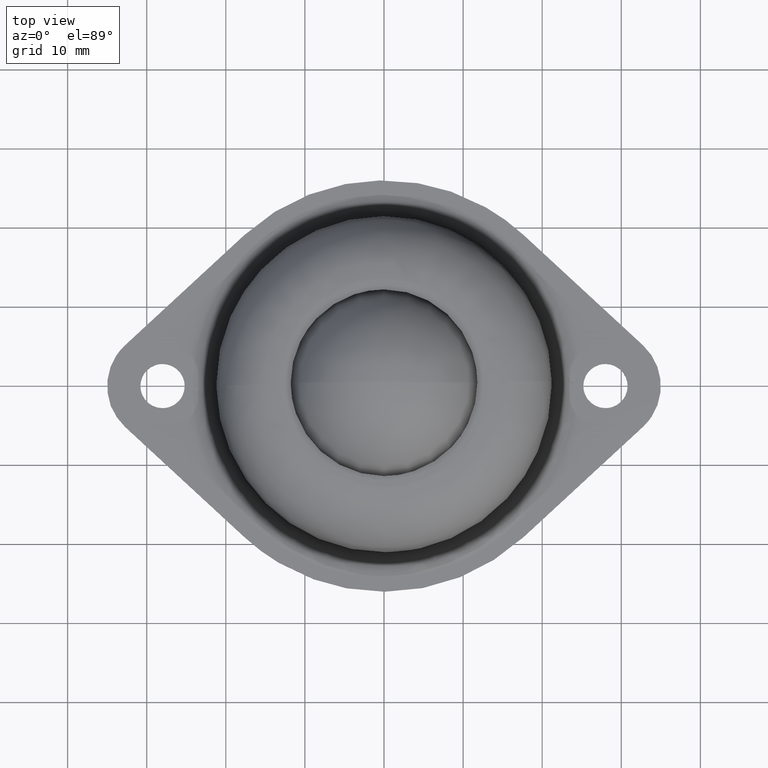
[diagram: clean part render]
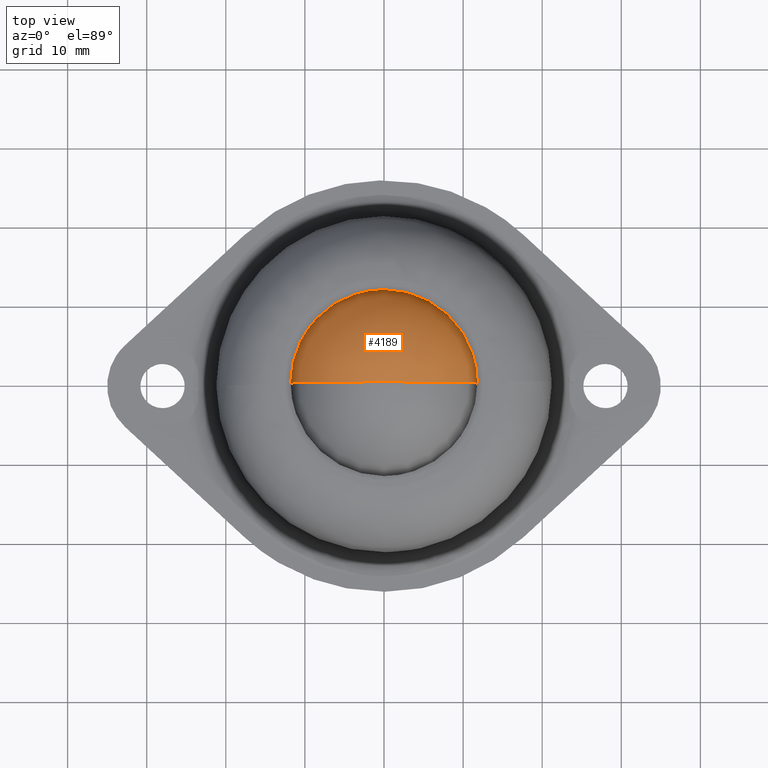
[diagram: same view with one face highlighted and labeled with its STEP entity id]
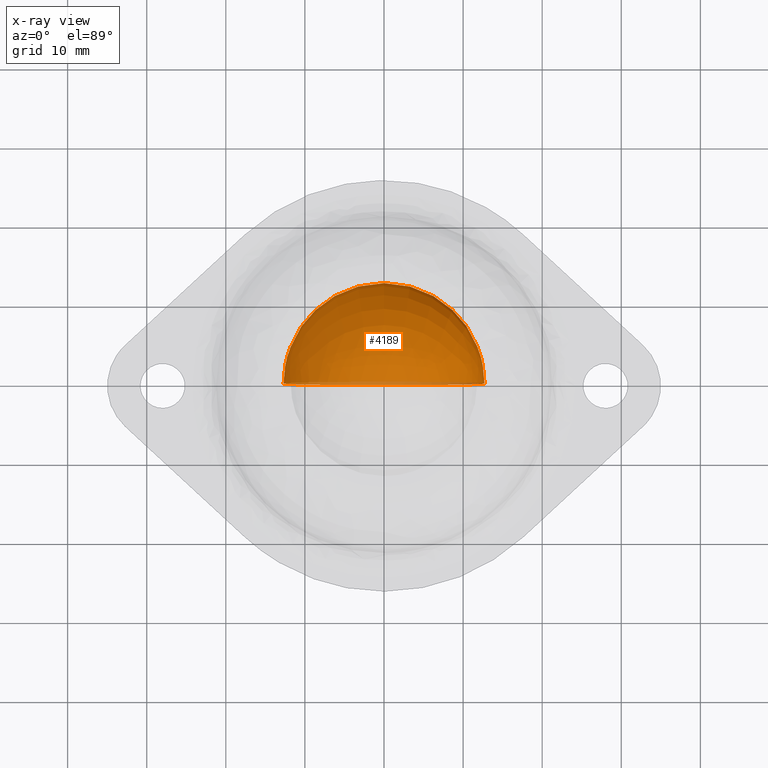
[diagram: x-ray of the same camera — body ghosted, the highlighted face saturated]
A machine part, top view. The second image highlights one B-rep face of the part: STEP entity #4189.
The next image is the same camera in x-ray: the body ghosted, the highlighted face saturated — about 3% of this face is hidden behind the body in this view.
In plain terms, the highlighted face is a freeform B-spline surface patch.
Its self-contained STEP definition (entity closure, byte-faithful):
#4062=CARTESIAN_POINT('',(-12.699999999999971,0.0,18.299999200742199));
#4063=VERTEX_POINT('',#4062);
#4064=CARTESIAN_POINT('',(0.0,0.0,5.600000000000001));
#4065=VERTEX_POINT('',#4064);
#4066=CARTESIAN_POINT('',(-12.699999999999971,0.0,18.299999200742199));
#4067=CARTESIAN_POINT('',(-12.700014432995410,0.0,17.754523017074259));
#4068=CARTESIAN_POINT('',(-12.624587836039179,0.0,16.585635148395561));
#4069=CARTESIAN_POINT('',(-12.242284863990379,0.0,14.723111663321641));
#4070=CARTESIAN_POINT('',(-11.549739743951950,0.0,12.894493333634280));
#4071=CARTESIAN_POINT('',(-10.710906216400531,0.0,11.424357013771120));
#4072=CARTESIAN_POINT('',(-9.789338617311007,0.0,10.165703006332860));
#4073=CARTESIAN_POINT('',(-8.800149980803203,0.0,9.094284493856621));
#4074=CARTESIAN_POINT('',(-7.502708177321456,0.0,8.009365768377553));
#4075=CARTESIAN_POINT('',(-5.943766952973771,0.0,7.015390183829774));
#4076=CARTESIAN_POINT('',(-4.387834633680080,0.0,6.342772329692170));
#4077=CARTESIAN_POINT('',(-2.363662346610817,0.0,5.762497502111541));
#4078=CARTESIAN_POINT('',(-1.013070300804061,0.0,5.599743555469085));
#4079=CARTESIAN_POINT('',(0.0,0.0,5.600000000000001));
#4080=B_SPLINE_CURVE_WITH_KNOTS('',3,(#4066,#4067,#4068,#4069,#4070,#4071,#4072,#4073,#4074,#4075,#4076,#4077,#4078,#4079),.UNSPECIFIED.,.F.,.U.,(4,1,1,1,1,1,1,1,1,1,1,4),(0.000000049066387,1.636431874159015,3.506676214303138,5.688623685117015,7.480944451646723,8.571902500633966,10.364199507868671,11.844783708121820,13.637109236099191,15.896975329774040,16.910028338913961,19.949144194189561),.UNSPECIFIED.);
#4081=EDGE_CURVE('',#4063,#4065,#4080,.T.);
#4083=CARTESIAN_POINT('',(12.699999999999971,0.0,18.299999200742199));
#4084=VERTEX_POINT('',#4083);
#4085=CARTESIAN_POINT('',(12.699999999999971,0.0,18.299999200742199));
#4086=CARTESIAN_POINT('',(12.700014432995410,0.0,17.754523017074259));
#4087=CARTESIAN_POINT('',(12.624587836039179,0.0,16.585635148395561));
#4088=CARTESIAN_POINT('',(12.242284863990379,0.0,14.723111663321641));
#4089=CARTESIAN_POINT('',(11.549739743951950,0.0,12.894493333634280));
#4090=CARTESIAN_POINT('',(10.710906216400531,0.0,11.424357013771120));
#4091=CARTESIAN_POINT('',(9.789338617311007,0.0,10.165703006332860));
#4092=CARTESIAN_POINT('',(8.800149980803203,0.0,9.094284493856621));
#4093=CARTESIAN_POINT('',(7.502708177321456,0.0,8.009365768377553));
#4094=CARTESIAN_POINT('',(5.943766952973771,0.0,7.015390183829774));
#4095=CARTESIAN_POINT('',(4.387834633680080,0.0,6.342772329692170));
#4096=CARTESIAN_POINT('',(2.363662346610817,0.0,5.762497502111541));
#4097=CARTESIAN_POINT('',(1.013070300804061,0.0,5.599743555469085));
#4098=CARTESIAN_POINT('',(0.0,0.0,5.600000000000001));
#4099=B_SPLINE_CURVE_WITH_KNOTS('',3,(#4085,#4086,#4087,#4088,#4089,#4090,#4091,#4092,#4093,#4094,#4095,#4096,#4097,#4098),.UNSPECIFIED.,.F.,.U.,(4,1,1,1,1,1,1,1,1,1,1,4),(0.000000049066387,1.636431874159015,3.506676214303138,5.688623685117015,7.480944451646723,8.571902500633966,10.364199507868671,11.844783708121820,13.637109236099191,15.896975329774040,16.910028338913961,19.949144194189561),.UNSPECIFIED.);
#4100=EDGE_CURVE('',#4084,#4065,#4099,.T.);
#4102=CARTESIAN_POINT('',(0.0,0.0,31.0));
#4103=VERTEX_POINT('',#4102);
#4104=CARTESIAN_POINT('',(0.0,0.0,31.0));
#4105=CARTESIAN_POINT('',(0.571458362768212,0.0,31.000019755641699));
#4106=CARTESIAN_POINT('',(1.766323092012794,0.0,30.919224843803889));
#4107=CARTESIAN_POINT('',(3.626463104796663,0.0,30.525491173249488));
#4108=CARTESIAN_POINT('',(5.403770413128687,0.0,29.846131052167419));
#4109=CARTESIAN_POINT('',(6.966768205631660,0.0,28.960661396786989));
#4110=CARTESIAN_POINT('',(8.506584615642712,0.0,27.804059798343321));
#4111=CARTESIAN_POINT('',(9.846912824638952,0.0,26.413409537816481));
#4112=CARTESIAN_POINT('',(11.098892874681470,0.0,24.588626045897350));
#4113=CARTESIAN_POINT('',(11.919047438698311,0.0,22.840596014580569));
#4114=CARTESIAN_POINT('',(12.543124071399561,0.0,20.663701727903451));
#4115=CARTESIAN_POINT('',(12.700133698329751,0.0,19.209149779416379));
#4116=CARTESIAN_POINT('',(12.699999999999971,0.0,18.299999200742199));
#4117=B_SPLINE_CURVE_WITH_KNOTS('',3,(#4104,#4105,#4106,#4107,#4108,#4109,#4110,#4111,#4112,#4113,#4114,#4115,#4116),.UNSPECIFIED.,.F.,.U.,(4,1,1,1,1,1,1,1,1,1,4),(0.000000048986934,1.714377367343801,3.584611626164541,5.688623942018500,7.403006814926080,8.961537018933347,11.455149912381151,13.169540481544630,15.585273240986490,17.221725623450581,19.949145095140810),.UNSPECIFIED.);
#4118=EDGE_CURVE('',#4103,#4084,#4117,.T.);
#4120=CARTESIAN_POINT('',(0.0,0.0,31.0));
#4121=CARTESIAN_POINT('',(-0.571458362768212,0.0,31.000019755641699));
#4122=CARTESIAN_POINT('',(-1.766323092012794,0.0,30.919224843803889));
#4123=CARTESIAN_POINT('',(-3.626463104796663,0.0,30.525491173249488));
#4124=CARTESIAN_POINT('',(-5.403770413128687,0.0,29.846131052167419));
#4125=CARTESIAN_POINT('',(-6.966768205631660,0.0,28.960661396786989));
#4126=CARTESIAN_POINT('',(-8.506584615642712,0.0,27.804059798343321));
#4127=CARTESIAN_POINT('',(-9.846912824638952,0.0,26.413409537816481));
#4128=CARTESIAN_POINT('',(-11.098892874681470,0.0,24.588626045897350));
#4129=CARTESIAN_POINT('',(-11.919047438698311,0.0,22.840596014580569));
#4130=CARTESIAN_POINT('',(-12.543124071399561,0.0,20.663701727903451));
#4131=CARTESIAN_POINT('',(-12.700133698329751,0.0,19.209149779416379));
#4132=CARTESIAN_POINT('',(-12.699999999999971,0.0,18.299999200742199));
#4133=B_SPLINE_CURVE_WITH_KNOTS('',3,(#4120,#4121,#4122,#4123,#4124,#4125,#4126,#4127,#4128,#4129,#4130,#4131,#4132),.UNSPECIFIED.,.F.,.U.,(4,1,1,1,1,1,1,1,1,1,4),(0.000000048986934,1.714377367343801,3.584611626164541,5.688623942018500,7.403006814926080,8.961537018933347,11.455149912381151,13.169540481544630,15.585273240986490,17.221725623450581,19.949145095140810),.UNSPECIFIED.);
#4134=EDGE_CURVE('',#4103,#4063,#4133,.T.);
#4139=CARTESIAN_POINT('',(-8.324920232350575,-4.762500000000000,26.624920232350576));
#4140=CARTESIAN_POINT('',(-7.539550399109955,-3.115094339622643,28.352733865479944));
#4141=CARTESIAN_POINT('',(-3.171398183752600,-0.604761904761904,30.985592735010396));
#4142=CARTESIAN_POINT('',(3.171398183752600,-0.604761904761904,30.985592735010396));
#4143=CARTESIAN_POINT('',(7.539550399109955,-3.115094339622643,28.352733865479944));
#4144=CARTESIAN_POINT('',(8.324920232350575,-4.762500000000000,26.624920232350576));
#4145=CARTESIAN_POINT('',(-10.052733865479940,-3.115094339622643,25.839550399109957));
#4146=CARTESIAN_POINT('',(-9.514194551257800,-0.604761904761904,27.814194551257795));
#4147=CARTESIAN_POINT('',(-4.296733023148684,3.687096774193545,31.190199069446049));
#4148=CARTESIAN_POINT('',(4.296733023148684,3.687096774193545,31.190199069446049));
#4149=CARTESIAN_POINT('',(9.514194551257800,-0.604761904761904,27.814194551257795));
#4150=CARTESIAN_POINT('',(10.052733865479940,-3.115094339622643,25.839550399109957));
#4151=CARTESIAN_POINT('',(-12.685592735010401,-0.604761904761904,21.471398183752601));
#4152=CARTESIAN_POINT('',(-12.890199069446052,3.687096774193545,22.596733023148687));
#4153=CARTESIAN_POINT('',(-6.659936185880460,12.699999999999999,24.959936185880458));
#4154=CARTESIAN_POINT('',(6.659936185880460,12.699999999999999,24.959936185880458));
#4155=CARTESIAN_POINT('',(12.890199069446052,3.687096774193545,22.596733023148687));
#4156=CARTESIAN_POINT('',(12.685592735010401,-0.604761904761904,21.471398183752601));
#4157=CARTESIAN_POINT('',(-12.685592735010401,-0.604761904761904,15.128601816247398));
#4158=CARTESIAN_POINT('',(-12.890199069446052,3.687096774193545,14.003266976851316));
#4159=CARTESIAN_POINT('',(-6.659936185880460,12.699999999999999,11.640063814119539));
#4160=CARTESIAN_POINT('',(6.659936185880460,12.699999999999999,11.640063814119539));
#4161=CARTESIAN_POINT('',(12.890199069446052,3.687096774193545,14.003266976851316));
#4162=CARTESIAN_POINT('',(12.685592735010401,-0.604761904761904,15.128601816247398));
#4163=CARTESIAN_POINT('',(-10.052733865479940,-3.115094339622643,10.760449600890050));
#4164=CARTESIAN_POINT('',(-9.514194551257800,-0.604761904761904,8.785805448742199));
#4165=CARTESIAN_POINT('',(-4.296733023148684,3.687096774193545,5.409800930553949));
#4166=CARTESIAN_POINT('',(4.296733023148684,3.687096774193545,5.409800930553949));
#4167=CARTESIAN_POINT('',(9.514194551257800,-0.604761904761904,8.785805448742199));
#4168=CARTESIAN_POINT('',(10.052733865479940,-3.115094339622643,10.760449600890050));
#4169=CARTESIAN_POINT('',(-8.324920232350575,-4.762500000000000,9.975079767649424));
#4170=CARTESIAN_POINT('',(-7.539550399109955,-3.115094339622643,8.247266134520064));
#4171=CARTESIAN_POINT('',(-3.171398183752600,-0.604761904761904,5.614407264989600));
#4172=CARTESIAN_POINT('',(3.171398183752600,-0.604761904761904,5.614407264989600));
#4173=CARTESIAN_POINT('',(7.539550399109955,-3.115094339622643,8.247266134520064));
#4174=CARTESIAN_POINT('',(8.324920232350575,-4.762500000000000,9.975079767649424));
#4182=(BOUNDED_SURFACE()B_SPLINE_SURFACE(2,2,((#4139,#4145,#4151,#4157,#4163,#4169),(#4140,#4146,#4152,#4158,#4164,#4170),(#4141,#4147,#4153,#4159,#4165,#4171),(#4142,#4148,#4154,#4160,#4166,#4172),(#4143,#4149,#4155,#4161,#4167,#4173),(#4144,#4150,#4156,#4162,#4168,#4174)),.UNSPECIFIED.,.F.,.F.,.U.)B_SPLINE_SURFACE_WITH_KNOTS((3,1,1,1,3),(3,1,1,1,3),(0.0,11.709777909240371,23.419555818480742,35.129333727721111,46.839111636961483),(0.0,11.709777909240380,23.419555818480760,35.129333727721132,46.839111636961512),.UNSPECIFIED.)GEOMETRIC_REPRESENTATION_ITEM()RATIONAL_B_SPLINE_SURFACE(((3.200000000000000,2.650000000000000,2.100000000000000,2.100000000000000,2.650000000000000,3.200000000000000),(2.650000000000000,2.100000000000000,1.550000000000000,1.550000000000000,2.100000000000000,2.650000000000000),(2.100000000000000,1.550000000000000,1.0,1.0,1.550000000000000,2.100000000000000),(2.100000000000000,1.550000000000000,1.0,1.0,1.550000000000000,2.100000000000000),(2.650000000000000,2.100000000000000,1.550000000000000,1.550000000000000,2.100000000000000,2.650000000000000),(3.200000000000000,2.650000000000000,2.100000000000000,2.100000000000000,2.650000000000000,3.200000000000000)))REPRESENTATION_ITEM('')SURFACE());
#4183=ORIENTED_EDGE('',*,*,#4100,.T.);
#4184=ORIENTED_EDGE('',*,*,#4081,.F.);
#4185=ORIENTED_EDGE('',*,*,#4134,.F.);
#4186=ORIENTED_EDGE('',*,*,#4118,.T.);
#4187=EDGE_LOOP('',(#4183,#4184,#4185,#4186));
#4188=FACE_OUTER_BOUND('',#4187,.T.);
#4189=ADVANCED_FACE('',(#4188),#4182,.T.);